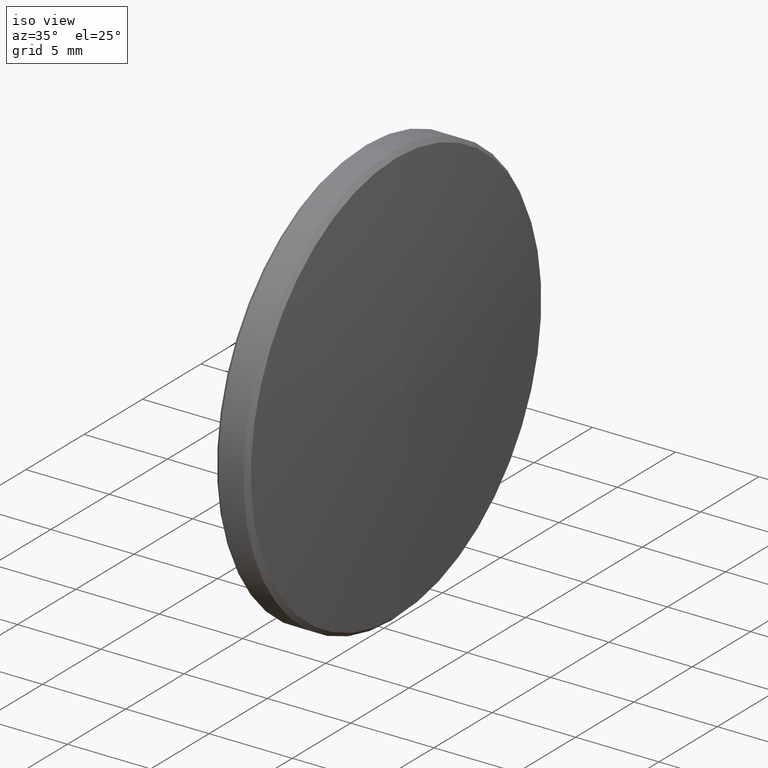
[diagram: clean part render]
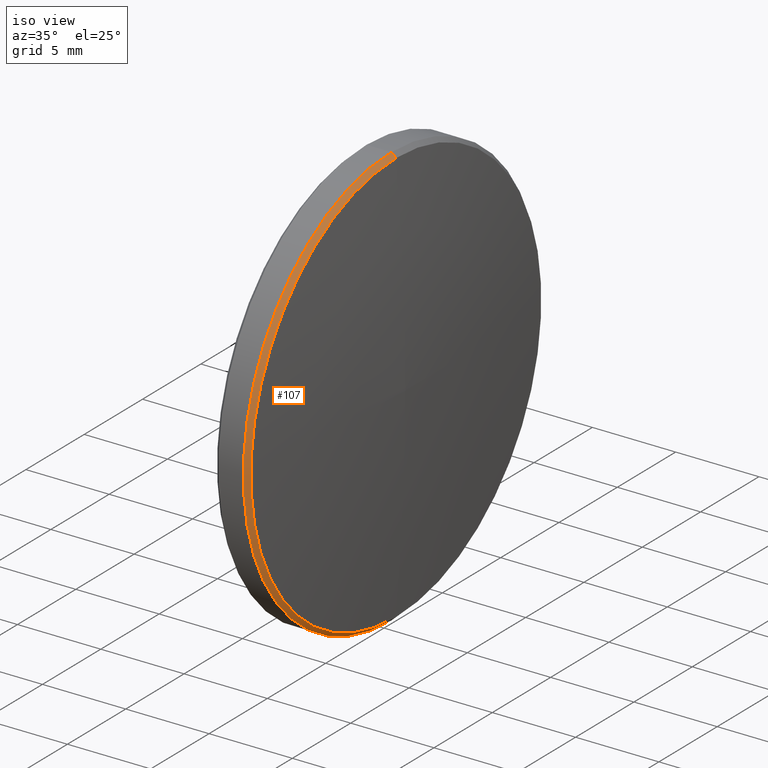
[diagram: same view with one face highlighted and labeled with its STEP entity id]
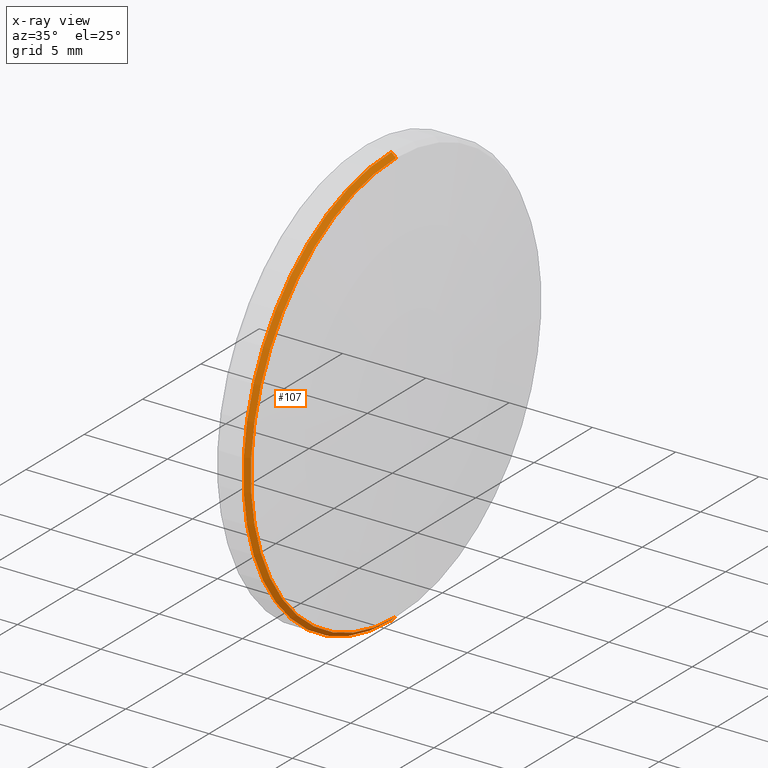
[diagram: x-ray of the same camera — body ghosted, the highlighted face saturated]
A machine part, iso view. The second image highlights one B-rep face of the part: STEP entity #107.
The next image is the same camera in x-ray: the body ghosted, the highlighted face saturated — about 0% of this face is hidden behind the body in this view.
In plain terms, the highlighted conical surface has half-angle 42.327 deg.
Its self-contained STEP definition (entity closure, byte-faithful):
#6 = FACE_OUTER_BOUND ( 'NONE', #23, .T. ) ;
#15 = DIRECTION ( 'NONE',  ( -1.000000000000000000, -0.0000000000000000000, -0.0000000000000000000 ) ) ;
#23 = EDGE_LOOP ( 'NONE', ( #53, #141, #208, #78 ) ) ;
#38 = AXIS2_PLACEMENT_3D ( 'NONE', #43, #100, #277 ) ;
#43 = CARTESIAN_POINT ( 'NONE',  ( 0.7230408307691560400, 0.0000000000000000000, 0.0000000000000000000 ) ) ;
#53 = ORIENTED_EDGE ( 'NONE', *, *, #266, .F. ) ;
#78 = ORIENTED_EDGE ( 'NONE', *, *, #88, .F. ) ;
#88 = EDGE_CURVE ( 'NONE', #131, #167, #221, .T. ) ;
#89 = LINE ( 'NONE', #157, #164 ) ;
#100 = DIRECTION ( 'NONE',  ( 1.000000000000000000, 0.0000000000000000000, 0.0000000000000000000 ) ) ;
#107 = ADVANCED_FACE ( 'NONE', ( #6 ), #240, .T. ) ;
#124 = AXIS2_PLACEMENT_3D ( 'NONE', #272, #15, #301 ) ;
#131 = VERTEX_POINT ( 'NONE', #142 ) ;
#134 = CARTESIAN_POINT ( 'NONE',  ( 0.7230408307691560400, 0.0000000000000000000, 12.45131311545400300 ) ) ;
#141 = ORIENTED_EDGE ( 'NONE', *, *, #162, .F. ) ;
#142 = CARTESIAN_POINT ( 'NONE',  ( 0.4500000000353665500, 1.555301434917138600E-015, -12.70000000000000100 ) ) ;
#155 = DIRECTION ( 'NONE',  ( -1.000000000000000000, -0.0000000000000000000, -0.0000000000000000000 ) ) ;
#157 = CARTESIAN_POINT ( 'NONE',  ( 0.4500000000353665500, 1.555301434917138600E-015, -12.70000000000000100 ) ) ;
#162 = EDGE_CURVE ( 'NONE', #247, #206, #245, .T. ) ;
#164 = VECTOR ( 'NONE', #285, 1000.000000000000000 ) ;
#167 = VERTEX_POINT ( 'NONE', #282 ) ;
#168 = AXIS2_PLACEMENT_3D ( 'NONE', #186, #155, #181 ) ;
#179 = EDGE_CURVE ( 'NONE', #247, #167, #216, .T. ) ;
#181 = DIRECTION ( 'NONE',  ( 0.0000000000000000000, 0.0000000000000000000, 1.000000000000000000 ) ) ;
#186 = CARTESIAN_POINT ( 'NONE',  ( 0.4500000000353665500, 0.0000000000000000000, 0.0000000000000000000 ) ) ;
#190 = VECTOR ( 'NONE', #201, 1000.000000000000000 ) ;
#201 = DIRECTION ( 'NONE',  ( -0.7393090871524890000, 0.0000000000000000000, 0.6733662255071555200 ) ) ;
#206 = VERTEX_POINT ( 'NONE', #258 ) ;
#208 = ORIENTED_EDGE ( 'NONE', *, *, #179, .T. ) ;
#216 = LINE ( 'NONE', #249, #190 ) ;
#221 = CIRCLE ( 'NONE', #168, 12.70000000000000100 ) ;
#240 = CONICAL_SURFACE ( 'NONE', #124, 12.70000000000000100, 0.7387526053002000400 ) ;
#245 = CIRCLE ( 'NONE', #38, 12.45131311545390700 ) ;
#247 = VERTEX_POINT ( 'NONE', #134 ) ;
#249 = CARTESIAN_POINT ( 'NONE',  ( 0.4500000000353665500, 0.0000000000000000000, 12.70000000000000100 ) ) ;
#258 = CARTESIAN_POINT ( 'NONE',  ( 0.7230408307691560400, 1.524846075202220200E-015, -12.45131311545400300 ) ) ;
#266 = EDGE_CURVE ( 'NONE', #206, #131, #89, .T. ) ;
#272 = CARTESIAN_POINT ( 'NONE',  ( 0.4500000000353665500, 0.0000000000000000000, 0.0000000000000000000 ) ) ;
#277 = DIRECTION ( 'NONE',  ( 0.0000000000000000000, 0.0000000000000000000, 1.000000000000000000 ) ) ;
#282 = CARTESIAN_POINT ( 'NONE',  ( 0.4500000000353665500, 0.0000000000000000000, 12.70000000000000100 ) ) ;
#285 = DIRECTION ( 'NONE',  ( -0.7393090871524890000, 8.246357927212729600E-017, -0.6733662255071555200 ) ) ;
#301 = DIRECTION ( 'NONE',  ( 0.0000000000000000000, 0.0000000000000000000, 1.000000000000000000 ) ) ;